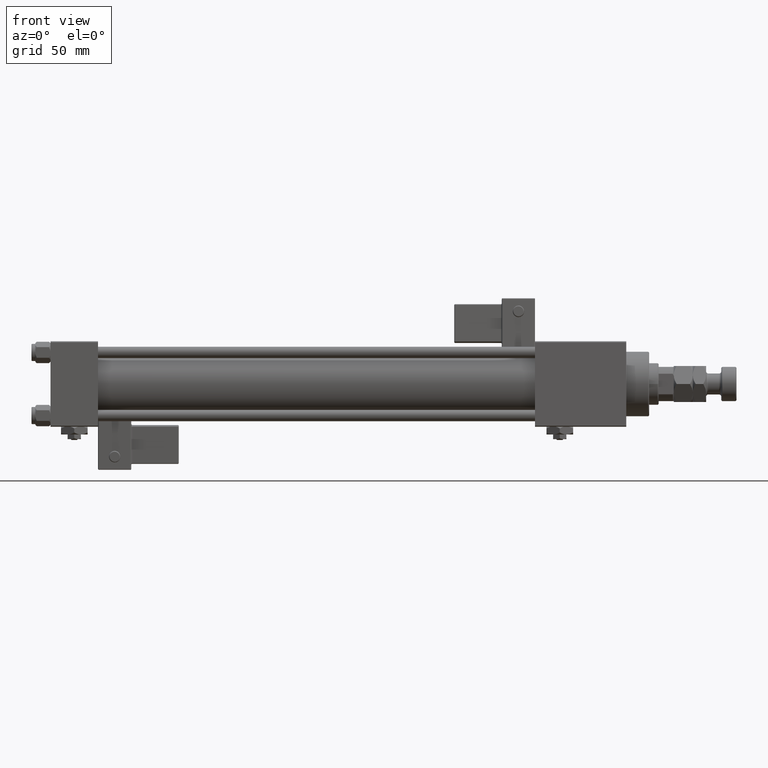
[diagram: clean part render]
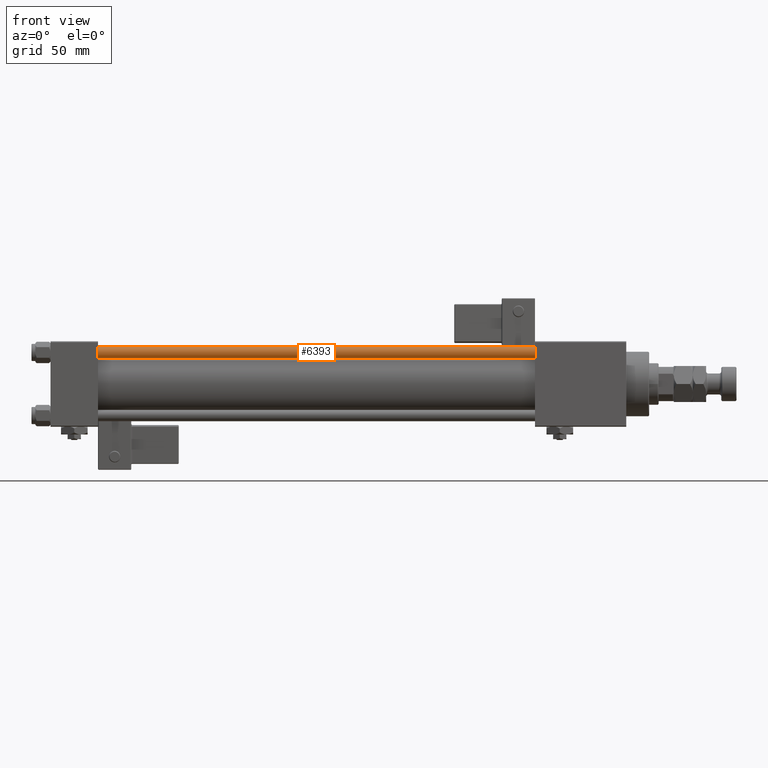
[diagram: same view with one face highlighted and labeled with its STEP entity id]
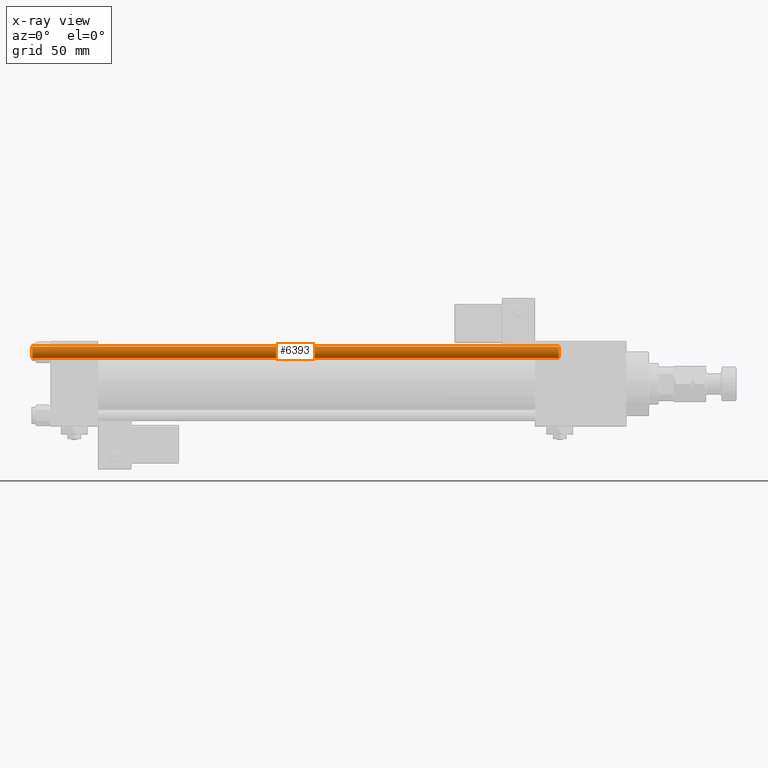
[diagram: x-ray of the same camera — body ghosted, the highlighted face saturated]
A machine part, front view. The second image highlights one B-rep face of the part: STEP entity #6393.
The next image is the same camera in x-ray: the body ghosted, the highlighted face saturated — about 0% of this face is hidden behind the body in this view.
In plain terms, the highlighted cylindrical surface (edge-blend (fillet) strip) has radius 3 mm, axis along (1, 0, -0).
Its self-contained STEP definition (entity closure, byte-faithful):
#890 = CIRCLE ( 'NONE', #21861, 3.000000000000000444 ) ;
#2779 = CARTESIAN_POINT ( 'NONE',  ( 3.000000000000000444, 3.673940397442060361E-16, 278.0000000000000000 ) ) ;
#4512 = VERTEX_POINT ( 'NONE', #25430 ) ;
#6393 = ADVANCED_FACE ( 'NONE', ( #42175 ), #54701, .T. ) ;
#6487 = DIRECTION ( 'NONE',  ( -0.000000000000000000, -0.000000000000000000, -1.000000000000000000 ) ) ;
#7260 = DIRECTION ( 'NONE',  ( -0.000000000000000000, -0.000000000000000000, 1.000000000000000000 ) ) ;
#8988 = EDGE_LOOP ( 'NONE', ( #51956, #27990, #48388, #26196 ) ) ;
#11652 = CARTESIAN_POINT ( 'NONE',  ( -3.000000000000000444, 0.000000000000000000, 277.5000000000000568 ) ) ;
#14924 = EDGE_CURVE ( 'NONE', #22291, #48638, #890, .T. ) ;
#15125 = DIRECTION ( 'NONE',  ( 1.000000000000000000, 0.000000000000000000, 0.000000000000000000 ) ) ;
#16067 = CARTESIAN_POINT ( 'NONE',  ( -3.000000000000000444, 0.000000000000000000, 278.0000000000000000 ) ) ;
#21861 = AXIS2_PLACEMENT_3D ( 'NONE', #46250, #7260, #50522 ) ;
#22291 = VERTEX_POINT ( 'NONE', #44543 ) ;
#23120 = CARTESIAN_POINT ( 'NONE',  ( 0.000000000000000000, 0.000000000000000000, 277.5000000000000568 ) ) ;
#23677 = DIRECTION ( 'NONE',  ( 0.000000000000000000, 0.000000000000000000, -1.000000000000000000 ) ) ;
#25023 = CARTESIAN_POINT ( 'NONE',  ( -3.000000000000000444, 0.000000000000000000, 0.5000000000000559552 ) ) ;
#25430 = CARTESIAN_POINT ( 'NONE',  ( 3.000000000000000444, 3.673940397442060361E-16, 277.5000000000000568 ) ) ;
#26196 = ORIENTED_EDGE ( 'NONE', *, *, #31366, .F. ) ;
#27990 = ORIENTED_EDGE ( 'NONE', *, *, #55122, .T. ) ;
#30262 = AXIS2_PLACEMENT_3D ( 'NONE', #23120, #23677, #15125 ) ;
#31366 = EDGE_CURVE ( 'NONE', #43539, #48638, #37695, .T. ) ;
#33634 = DIRECTION ( 'NONE',  ( -0.000000000000000000, -0.000000000000000000, -1.000000000000000000 ) ) ;
#34192 = DIRECTION ( 'NONE',  ( -1.000000000000000000, 0.000000000000000000, 0.000000000000000000 ) ) ;
#35209 = AXIS2_PLACEMENT_3D ( 'NONE', #41610, #33634, #34192 ) ;
#37695 = LINE ( 'NONE', #16067, #56278 ) ;
#40962 = EDGE_CURVE ( 'NONE', #43539, #4512, #54793, .T. ) ;
#41610 = CARTESIAN_POINT ( 'NONE',  ( 0.000000000000000000, 0.000000000000000000, 278.0000000000000000 ) ) ;
#42175 = FACE_OUTER_BOUND ( 'NONE', #8988, .T. ) ;
#43539 = VERTEX_POINT ( 'NONE', #11652 ) ;
#44543 = CARTESIAN_POINT ( 'NONE',  ( 3.000000000000000444, 3.673940397442060361E-16, 0.5000000000000559552 ) ) ;
#46250 = CARTESIAN_POINT ( 'NONE',  ( 0.000000000000000000, 0.000000000000000000, 0.5000000000000559552 ) ) ;
#46608 = LINE ( 'NONE', #2779, #49014 ) ;
#48388 = ORIENTED_EDGE ( 'NONE', *, *, #14924, .T. ) ;
#48638 = VERTEX_POINT ( 'NONE', #25023 ) ;
#49014 = VECTOR ( 'NONE', #6487, 1000.000000000000000 ) ;
#50522 = DIRECTION ( 'NONE',  ( 1.000000000000000000, 0.000000000000000000, 0.000000000000000000 ) ) ;
#51956 = ORIENTED_EDGE ( 'NONE', *, *, #40962, .T. ) ;
#54701 = CYLINDRICAL_SURFACE ( 'NONE', #35209, 3.000000000000000444 ) ;
#54793 = CIRCLE ( 'NONE', #30262, 3.000000000000000444 ) ;
#55027 = DIRECTION ( 'NONE',  ( -0.000000000000000000, -0.000000000000000000, -1.000000000000000000 ) ) ;
#55122 = EDGE_CURVE ( 'NONE', #4512, #22291, #46608, .T. ) ;
#56278 = VECTOR ( 'NONE', #55027, 1000.000000000000000 ) ;